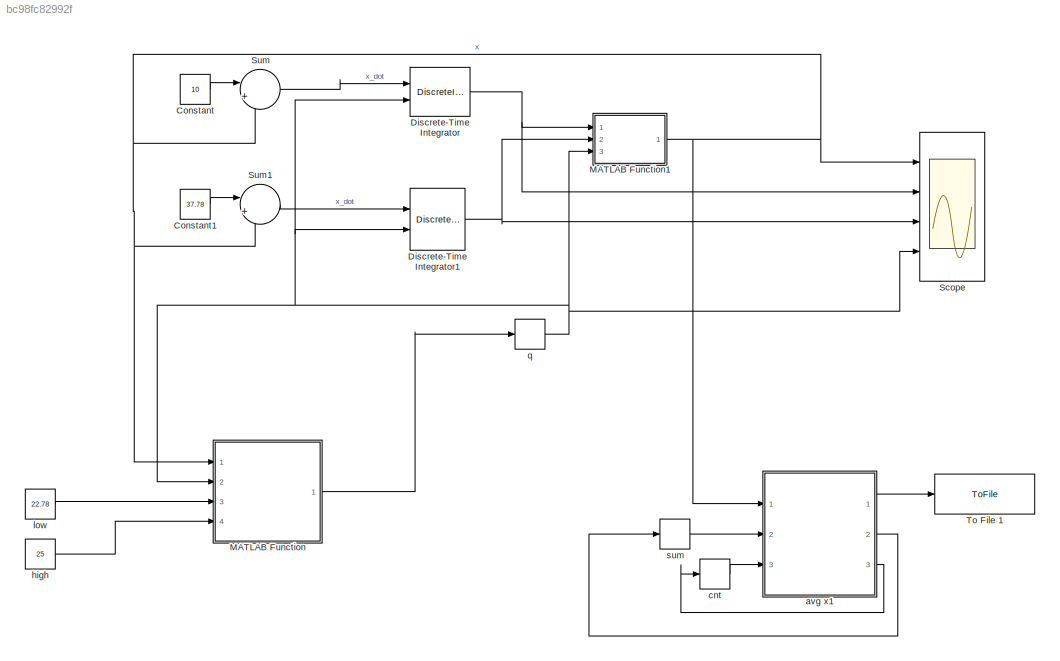
MODEL slx_bc98fc82992f
KIND model
BLOCK [Constant] Constant
  Value = 10
BLOCK [Constant] Constant1
  Value = 37.78
BLOCK [DiscreteIntegrator] Discrete-Time Integrator
  ExternalReset = either
  InitialCondition = 25
  InitialConditionSetting = State (most efficient)
  Ports = [2, 1]
  SampleTime = -1
BLOCK [DiscreteIntegrator] Discrete-Time Integrator1
  ExternalReset = either
  InitialCondition = 22.78
  InitialConditionSetting = State (most efficient)
  Ports = [2, 1]
  SampleTime = -1
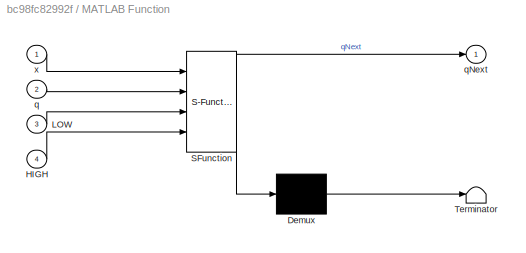
BLOCK [SubSystem] MATLAB Function
  ErrorFcn = Stateflow.Translate.translate
  PermitHierarchicalResolution = ExplicitOnly
  Ports = [4, 1]
  RequestExecContextInheritance = off
  SFBlockType = MATLAB Function
  TreatAsAtomicUnit = on
BLOCK [Demux] MATLAB Function/ Demux 
  Outputs = 1
  Ports = [1, 1]
BLOCK [S-Function] MATLAB Function/ SFunction 
  EnableBusSupport = on
  FunctionName = sf_sfun
  PortCounts = [4 2]
  Ports = [4, 2]
  Tag = Stateflow S-Function thermostat 2
BLOCK [Terminator] MATLAB Function/ Terminator 
BLOCK [Inport] MATLAB Function/HIGH
  IconDisplay = Port number
  Port = 4
BLOCK [Inport] MATLAB Function/LOW
  IconDisplay = Port number
  Port = 3
BLOCK [Inport] MATLAB Function/q
  IconDisplay = Port number
  Port = 2
BLOCK [Outport] MATLAB Function/qNext
  IconDisplay = Port number
BLOCK [Inport] MATLAB Function/x
  IconDisplay = Port number
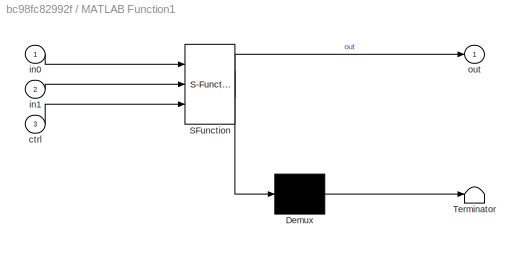
BLOCK [SubSystem] MATLAB Function1
  ErrorFcn = Stateflow.Translate.translate
  PermitHierarchicalResolution = ExplicitOnly
  Ports = [3, 1]
  RequestExecContextInheritance = off
  SFBlockType = MATLAB Function
  TreatAsAtomicUnit = on
BLOCK [Demux] MATLAB Function1/ Demux 
  Outputs = 1
  Ports = [1, 1]
BLOCK [S-Function] MATLAB Function1/ SFunction 
  EnableBusSupport = on
  FunctionName = sf_sfun
  PortCounts = [3 2]
  Ports = [3, 2]
  Tag = Stateflow S-Function thermostat 1
BLOCK [Terminator] MATLAB Function1/ Terminator 
BLOCK [Inport] MATLAB Function1/ctrl
  IconDisplay = Port number
  Port = 3
BLOCK [Inport] MATLAB Function1/in0
  IconDisplay = Port number
BLOCK [Inport] MATLAB Function1/in1
  IconDisplay = Port number
  Port = 2
BLOCK [Outport] MATLAB Function1/out
  IconDisplay = Port number
BLOCK [Scope] Scope
  Floating = off
  NumInputPorts = 4
  Ports = [4]
  ShowLegends = on
  TickLabels = on
  YMax = 25.5~23~25.5~1.5
  YMin = 22.5~20.5~22.5~-0.5
  ZoomMode = xonly
BLOCK [Sum] Sum
  IconShape = round
  InputSameDT = off
  Inputs = |+-
  OutDataTypeStr = Inherit: Inherit via internal rule
  Ports = [2, 1]
  SaturateOnIntegerOverflow = off
BLOCK [Sum] Sum1
  IconShape = round
  InputSameDT = off
  Inputs = |+-
  OutDataTypeStr = Inherit: Inherit via internal rule
  Ports = [2, 1]
  SaturateOnIntegerOverflow = off
BLOCK [ToFile] To File 1
  Decimation = 10000000
  Filename = xOutput.mat
  Ports = [1]
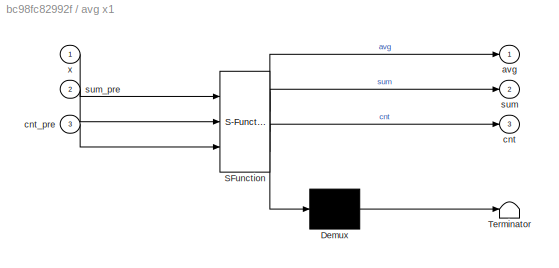
BLOCK [SubSystem] avg x1
  ErrorFcn = Stateflow.Translate.translate
  PermitHierarchicalResolution = ExplicitOnly
  Ports = [3, 3]
  RequestExecContextInheritance = off
  SFBlockType = MATLAB Function
  TreatAsAtomicUnit = on
BLOCK [Demux] avg x1/ Demux 
  Outputs = 1
  Ports = [1, 1]
BLOCK [S-Function] avg x1/ SFunction 
  EnableBusSupport = on
  FunctionName = sf_sfun
  PortCounts = [3 4]
  Ports = [3, 4]
  Tag = Stateflow S-Function thermostat 3
BLOCK [Terminator] avg x1/ Terminator 
BLOCK [Outport] avg x1/avg
  IconDisplay = Port number
BLOCK [Outport] avg x1/cnt
  IconDisplay = Port number
  Port = 3
BLOCK [Inport] avg x1/cnt_pre
  IconDisplay = Port number
  Port = 3
BLOCK [Outport] avg x1/sum
  IconDisplay = Port number
  Port = 2
BLOCK [Inport] avg x1/sum_pre
  IconDisplay = Port number
  Port = 2
BLOCK [Inport] avg x1/x
  IconDisplay = Port number
BLOCK [Memory] cnt
BLOCK [Constant] high
  Value = 25
BLOCK [Constant] low
  Value = 22.78
BLOCK [Memory] q
BLOCK [Memory] sum
LINE Constant1:1 -> Sum1:1
LINE Constant:1 -> Sum:1
NET Discrete-Time Integrator1:1 -> MATLAB Function1:2, Scope:3
NET Discrete-Time Integrator:1 -> MATLAB Function1:1, Scope:2
NET MATLAB Function1:1 -> MATLAB Function:1, Scope:1, Sum1:2, Sum:2, avg x1:1
LINE MATLAB Function:1 -> q:1
LINE Sum1:1 -> Discrete-Time Integrator1:1
LINE Sum:1 -> Discrete-Time Integrator:1
LINE avg x1:1 -> To File 1:1
LINE avg x1:2 -> sum:1
LINE avg x1:3 -> cnt:1
LINE cnt:1 -> avg x1:3
LINE high:1 -> MATLAB Function:4
LINE low:1 -> MATLAB Function:3
NET q:1 -> Discrete-Time Integrator1:2, Discrete-Time Integrator:2, MATLAB Function1:3, MATLAB Function:2, Scope:4
LINE sum:1 -> avg x1:2
note: NET lines group one-source signal fan-out (src -> all destinations, sorted); 1:1 wires keep LINE
CHART MATLAB Function1 states=1 transitions=1
  STATE_LABEL 'eML_blk_kernel()'
  STATE_LABEL 'SCRIPT:\nfunction out = select(in0,in1,ctrl)\n%#codegen\nif(ctrl==0)\n    out=in0;\nelse\n    out=in1;\nend\n'
CHART MATLAB Function states=1 transitions=1
  STATE_LABEL 'eML_blk_kernel()'
  STATE_LABEL 'SCRIPT:\nfunction qNext = phi(x,q, LOW, HIGH)\n%#codegen\nif q==0 && x> LOW\n    qNext=0;\nelseif q==0 && x <= LOW\n    qNext=1;\nelseif q==1 && x < HIGH\n    qNext=1;\nelseif q==1 && x >= HIGH\n    qNext=0;\nelse\n    qNext=2; %this should never execute\nend\n'
CHART avg x1 states=1 transitions=1
  STATE_LABEL 'eML_blk_kernel()'
  STATE_LABEL 'SCRIPT:\nfunction [avg, sum,cnt] = fcn(x,  sum_pre, cnt_pre)\n%#codegen\n\ncnt=cnt_pre+1;\nsum=sum_pre+x;\navg=sum/cnt;\n'
